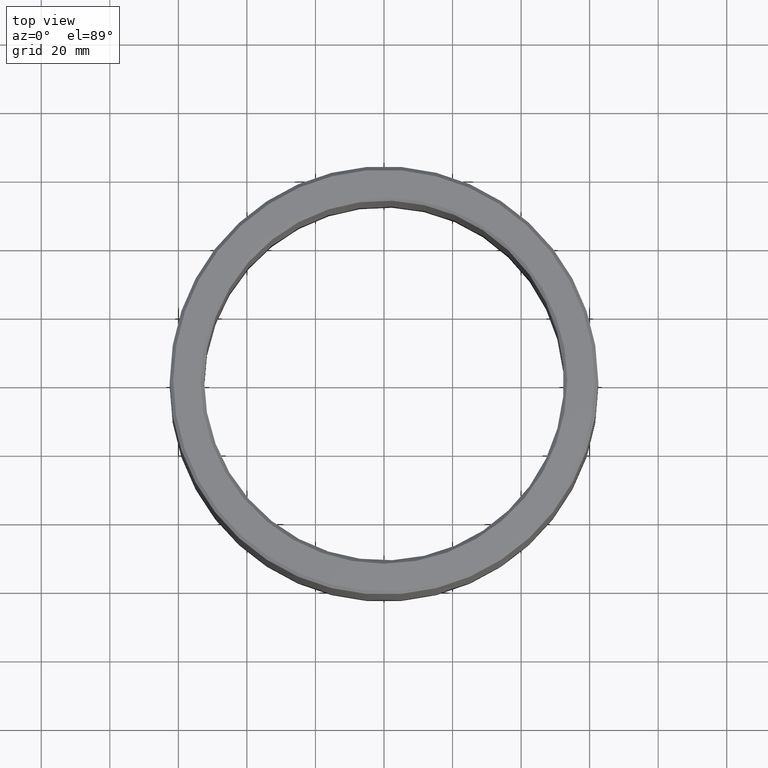
[diagram: clean part render]
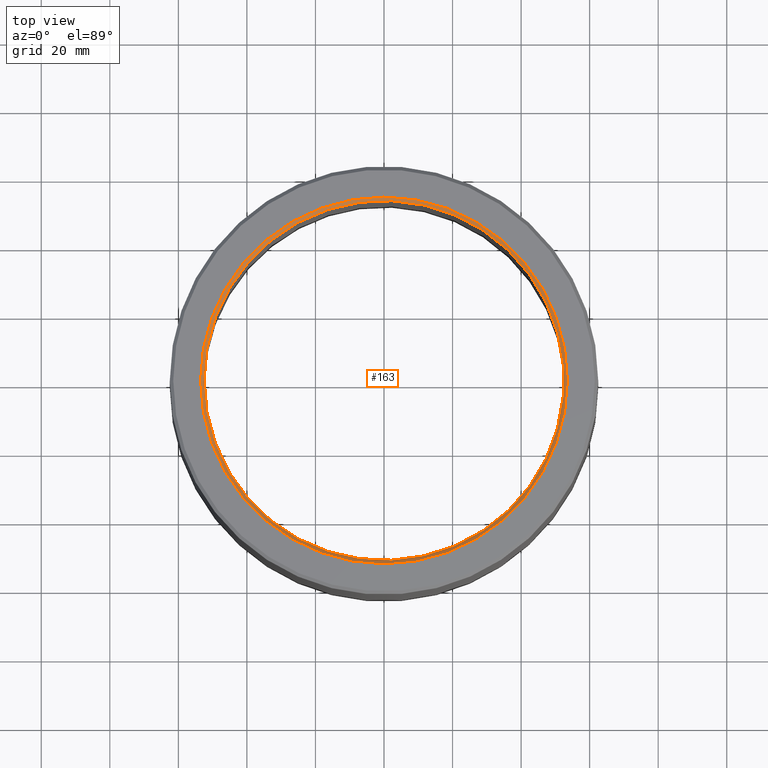
[diagram: same view with one face highlighted and labeled with its STEP entity id]
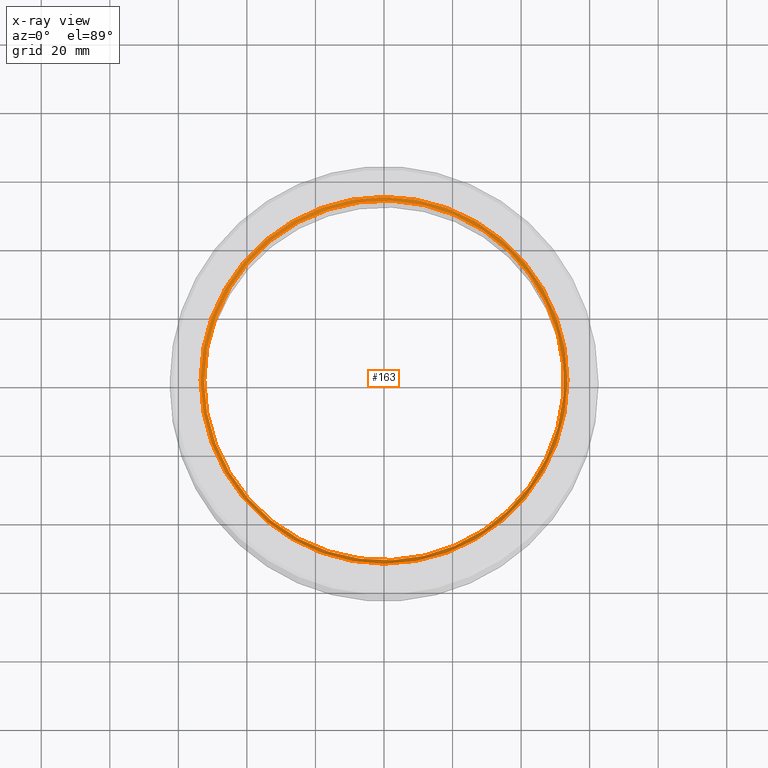
[diagram: x-ray of the same camera — body ghosted, the highlighted face saturated]
A machine part, top view. The second image highlights one B-rep face of the part: STEP entity #163.
The next image is the same camera in x-ray: the body ghosted, the highlighted face saturated — about 0% of this face is hidden behind the body in this view.
In plain terms, the highlighted conical surface has half-angle 45 deg.
Its self-contained STEP definition (entity closure, byte-faithful):
#163=ADVANCED_FACE('',(#195,#196),#197,.F.);
#195=FACE_BOUND('',#2775,.T.);
#196=FACE_OUTER_BOUND('',#2776,.T.);
#197=CONICAL_SURFACE('',#2777,0.0535,0.785398163397448);
#2775=EDGE_LOOP('',(#5386));
#2776=EDGE_LOOP('',(#5387));
#2777=AXIS2_PLACEMENT_3D('',#5388,#5389,#5390);
#5386=ORIENTED_EDGE('',*,*,#5412,.T.);
#5387=ORIENTED_EDGE('',*,*,#5414,.F.);
#5388=CARTESIAN_POINT('',(0.0,6.93889390390723E-018,0.12));
#5389=DIRECTION('',(-0.0,6.12323399573677E-017,1.0));
#5390=DIRECTION('',(0.0,-1.0,6.12323399573677E-017));
#5412=EDGE_CURVE('',#5441,#5441,#5442,.T.);
#5414=EDGE_CURVE('',#5444,#5444,#5445,.T.);
#5441=VERTEX_POINT('',#5628);
#5442=CIRCLE('',#5629,0.0525);
#5444=VERTEX_POINT('',#5716);
#5445=CIRCLE('',#5717,0.0535);
#5628=CARTESIAN_POINT('',(0.0,0.0525,0.119));
#5629=AXIS2_PLACEMENT_3D('',#5747,#5748,#5749);
#5716=CARTESIAN_POINT('',(0.0,0.0535,0.12));
#5717=AXIS2_PLACEMENT_3D('',#5750,#5751,#5752);
#5747=CARTESIAN_POINT('',(0.0,6.93889390390723E-018,0.119));
#5748=DIRECTION('',(0.0,-6.12323399573677E-017,-1.0));
#5749=DIRECTION('',(0.0,1.0,-6.12323399573677E-017));
#5750=CARTESIAN_POINT('',(0.0,6.93889390390723E-018,0.12));
#5751=DIRECTION('',(0.0,-6.12323399573677E-017,-1.0));
#5752=DIRECTION('',(0.0,1.0,-6.12323399573677E-017));